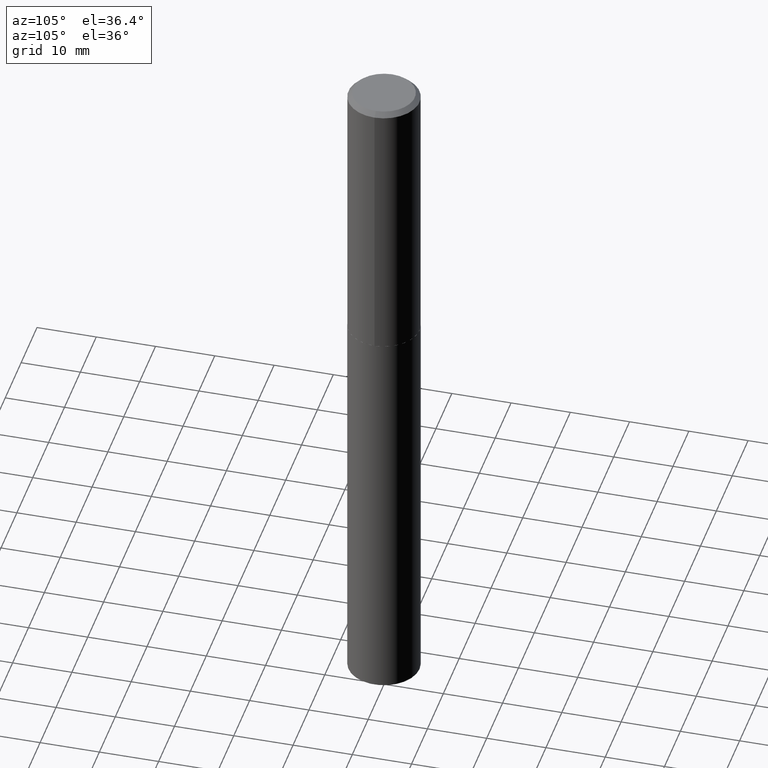
[diagram: clean part render]
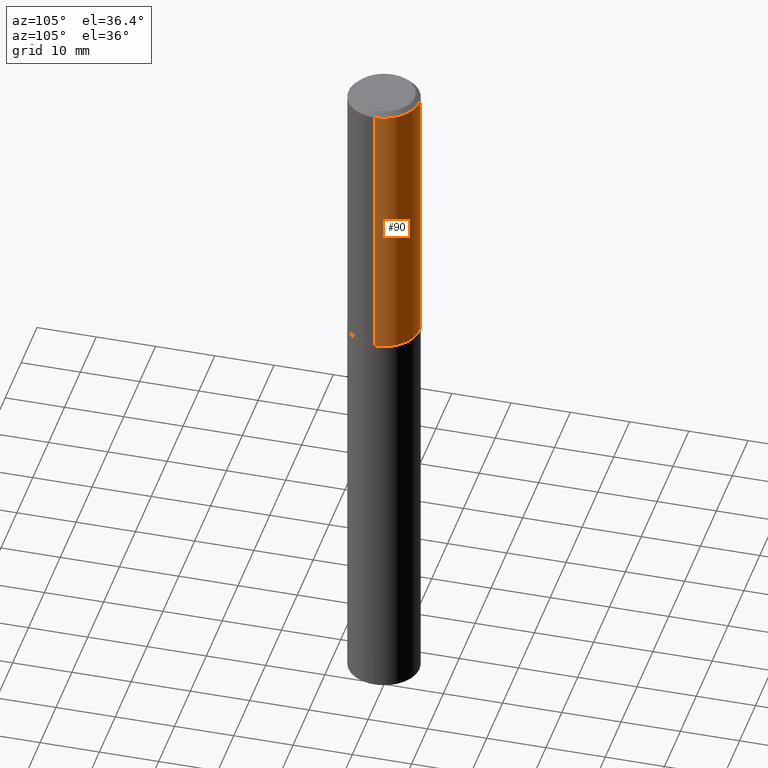
[diagram: same view with one face highlighted and labeled with its STEP entity id]
A machine part, auxiliary view. The second image highlights one B-rep face of the part: STEP entity #90.
In plain terms, the highlighted cylindrical surface (partial cylindrical patch) has radius 5.9995 mm, axis along (-0, 0, 1).
Its self-contained STEP definition (entity closure, byte-faithful):
#6 = DIRECTION ( 'NONE',  ( 1.000000000000000000, -6.982962677686269077E-15, 0.000000000000000000 ) ) ;
#8 = DIRECTION ( 'NONE',  ( -2.445468806185136877E-29, 3.491481338843145188E-15, 1.000000000000000000 ) ) ;
#9 = EDGE_CURVE ( 'NONE', #127, #17, #284, .T. ) ;
#15 = AXIS2_PLACEMENT_3D ( 'NONE', #288, #73, #141 ) ;
#17 = VERTEX_POINT ( 'NONE', #319 ) ;
#38 = LINE ( 'NONE', #368, #153 ) ;
#63 = ORIENTED_EDGE ( 'NONE', *, *, #9, .F. ) ;
#65 = LINE ( 'NONE', #184, #110 ) ;
#73 = DIRECTION ( 'NONE',  ( -2.445468806185136597E-29, 3.491481338843145583E-15, 1.000000000000000000 ) ) ;
#82 = ORIENTED_EDGE ( 'NONE', *, *, #350, .T. ) ;
#90 = ADVANCED_FACE ( 'NONE', ( #233 ), #147, .T. ) ;
#97 = DIRECTION ( 'NONE',  ( -2.445468806185136597E-29, 3.491481338843145583E-15, 1.000000000000000000 ) ) ;
#100 = ORIENTED_EDGE ( 'NONE', *, *, #244, .T. ) ;
#110 = VECTOR ( 'NONE', #8, 39.37007874015748143 ) ;
#115 = CARTESIAN_POINT ( 'NONE',  ( 0.2361999999999999933, -1.758484576308345231E-15, -0.03125000000000022898 ) ) ;
#127 = VERTEX_POINT ( 'NONE', #115 ) ;
#139 = VERTEX_POINT ( 'NONE', #294 ) ;
#141 = DIRECTION ( 'NONE',  ( 1.000000000000000000, -6.982962677686266711E-15, 0.000000000000000000 ) ) ;
#147 = CYLINDRICAL_SURFACE ( 'NONE', #338, 0.2362000000000001321 ) ;
#153 = VECTOR ( 'NONE', #179, 39.37007874015748143 ) ;
#171 = EDGE_LOOP ( 'NONE', ( #82, #100, #63, #342 ) ) ;
#179 = DIRECTION ( 'NONE',  ( -2.445468806185136877E-29, 3.491481338843145188E-15, 1.000000000000000000 ) ) ;
#184 = CARTESIAN_POINT ( 'NONE',  ( -0.2362000000000001321, 1.678301941865357577E-15, -1.161852468318209457E-29 ) ) ;
#189 = EDGE_CURVE ( 'NONE', #238, #127, #38, .T. ) ;
#213 = CARTESIAN_POINT ( 'NONE',  ( 0.2362000000000002709, -8.109314557597087077E-15, -1.850200000000000067 ) ) ;
#233 = FACE_OUTER_BOUND ( 'NONE', #171, .T. ) ;
#238 = VERTEX_POINT ( 'NONE', #213 ) ;
#240 = CARTESIAN_POINT ( 'NONE',  ( 4.524606385203739825E-29, -6.459938773127588186E-15, -1.850200000000000067 ) ) ;
#244 = EDGE_CURVE ( 'NONE', #139, #17, #65, .T. ) ;
#261 = DIRECTION ( 'NONE',  ( -2.445468806185136597E-29, 3.491481338843145583E-15, 1.000000000000000000 ) ) ;
#284 = CIRCLE ( 'NONE', #15, 0.2361999999999999933 ) ;
#288 = CARTESIAN_POINT ( 'NONE',  ( 7.642090019328607041E-31, -1.091087918388490883E-16, -0.03125000000000022898 ) ) ;
#291 = AXIS2_PLACEMENT_3D ( 'NONE', #240, #97, #6 ) ;
#294 = CARTESIAN_POINT ( 'NONE',  ( -0.2362000000000002709, -4.781636831262230214E-15, -1.850200000000000067 ) ) ;
#316 = CIRCLE ( 'NONE', #291, 0.2362000000000002709 ) ;
#319 = CARTESIAN_POINT ( 'NONE',  ( -0.2361999999999999933, -1.606221840617860474E-15, -0.03125000000000022898 ) ) ;
#333 = DIRECTION ( 'NONE',  ( 1.000000000000000000, -6.982962677686266711E-15, 4.876176775795936353E-29 ) ) ;
#338 = AXIS2_PLACEMENT_3D ( 'NONE', #364, #261, #333 ) ;
#342 = ORIENTED_EDGE ( 'NONE', *, *, #189, .F. ) ;
#350 = EDGE_CURVE ( 'NONE', #238, #139, #316, .T. ) ;
#364 = CARTESIAN_POINT ( 'NONE',  ( 0.000000000000000000, 0.000000000000000000, 0.000000000000000000 ) ) ;
#368 = CARTESIAN_POINT ( 'NONE',  ( 0.2362000000000001321, -1.649375784469497117E-15, 1.151752954443000789E-29 ) ) ;